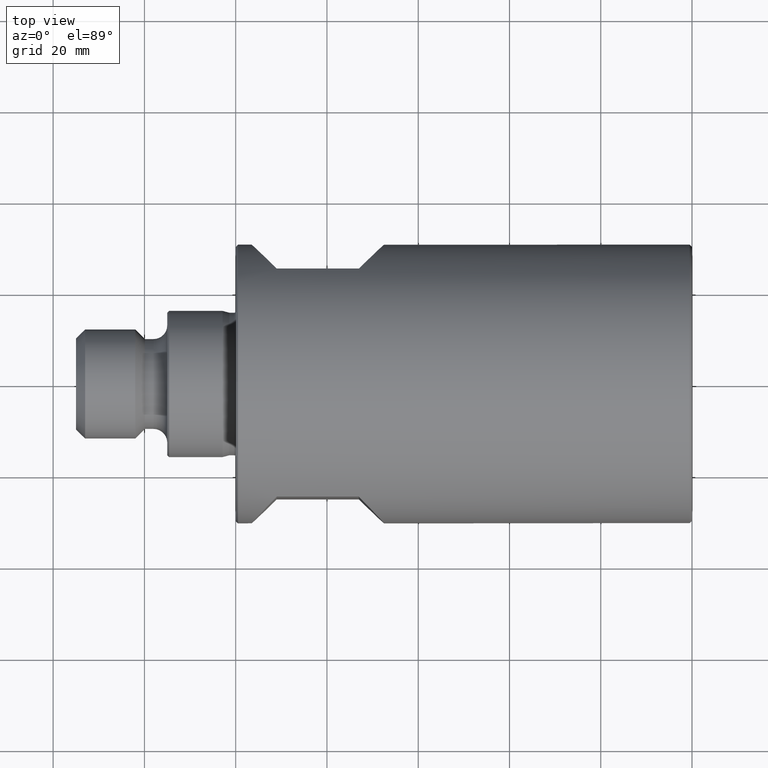
[diagram: clean part render]
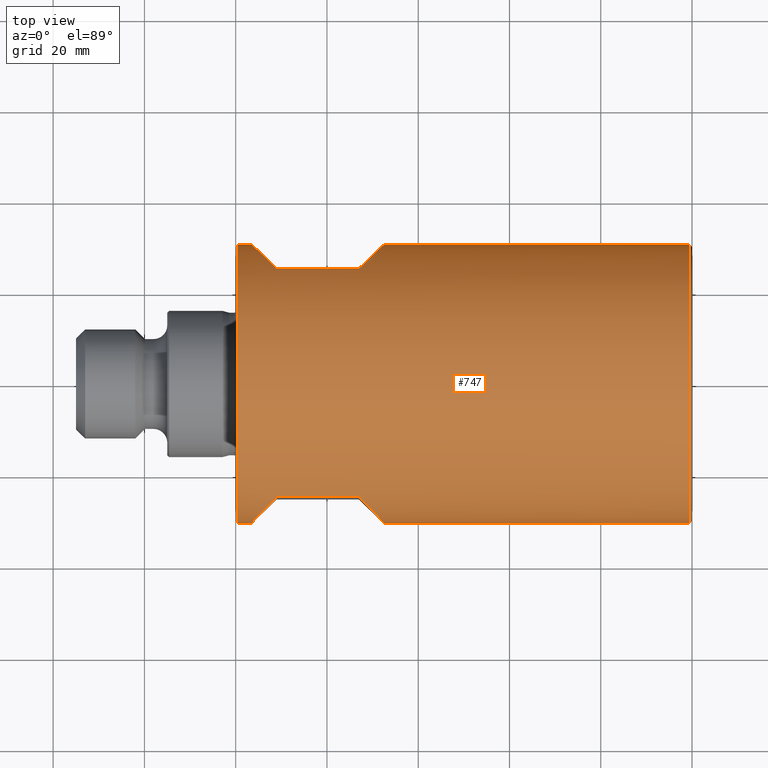
[diagram: same view with one face highlighted and labeled with its STEP entity id]
A machine part, top view. The second image highlights one B-rep face of the part: STEP entity #747.
In plain terms, the highlighted cylindrical surface (bore or boss wall) has radius 30.55 mm, axis along (1, -0, -0).
Its self-contained STEP definition (entity closure, byte-faithful):
#5 = CARTESIAN_POINT ( 'NONE',  ( -91.00000000000000000, -24.99999999999998600, 17.55854492832477800 ) ) ;
#15 = DIRECTION ( 'NONE',  ( -1.000000000000000000, 0.0000000000000000000, 0.0000000000000000000 ) ) ;
#25 = CARTESIAN_POINT ( 'NONE',  ( -73.00000000000001400, 24.99999999999998900, -17.55854492832478900 ) ) ;
#34 = DIRECTION ( 'NONE',  ( 1.000000000000000000, -0.0000000000000000000, -0.0000000000000000000 ) ) ;
#47 = VERTEX_POINT ( 'NONE', #257 ) ;
#62 = CARTESIAN_POINT ( 'NONE',  ( -91.00000000000000000, -24.99999999999998600, 17.55854492832477800 ) ) ;
#77 = VECTOR ( 'NONE', #875, 1000.000000000000000 ) ;
#80 = CARTESIAN_POINT ( 'NONE',  ( -65.34506517690874700, -32.65493482309124600, -6.659386065305054300 ) ) ;
#87 = CARTESIAN_POINT ( 'NONE',  ( -91.00000000000000000, 24.99999999999998600, 17.55854492832477800 ) ) ;
#125 =( BOUNDED_CURVE ( )  B_SPLINE_CURVE ( 3, ( #441, #373, #801, #5 ),
 .UNSPECIFIED., .F., .F. ) 
 B_SPLINE_CURVE_WITH_KNOTS ( ( 4, 4 ),
 ( 2.529296741777659300, 3.753888565401927400 ),
 .UNSPECIFIED. ) 
 CURVE ( )  GEOMETRIC_REPRESENTATION_ITEM ( )  RATIONAL_B_SPLINE_CURVE ( ( 1.000000000000000000, 0.8788870703764322100, 0.8788870703764322100, 1.000000000000000000 ) ) 
 REPRESENTATION_ITEM ( '' )  );
#151 = VERTEX_POINT ( 'NONE', #789 ) ;
#158 = EDGE_LOOP ( 'NONE', ( #812, #445, #400, #258 ) ) ;
#169 = AXIS2_PLACEMENT_3D ( 'NONE', #896, #15, #717 ) ;
#174 = CARTESIAN_POINT ( 'NONE',  ( -4.818676322157802300E-015, -25.00000000000000400, 17.55854492832476800 ) ) ;
#175 = EDGE_CURVE ( 'NONE', #380, #841, #125, .T. ) ;
#188 = LINE ( 'NONE', #174, #833 ) ;
#239 = CARTESIAN_POINT ( 'NONE',  ( -4.818676322157802300E-015, 25.00000000000000400, -17.55854492832476800 ) ) ;
#250 = EDGE_CURVE ( 'NONE', #540, #784, #434, .T. ) ;
#253 = CYLINDRICAL_SURFACE ( 'NONE', #477, 30.54999999999999400 ) ;
#257 = CARTESIAN_POINT ( 'NONE',  ( -73.00000000000001400, 24.99999999999998900, -17.55854492832478900 ) ) ;
#258 = ORIENTED_EDGE ( 'NONE', *, *, #473, .F. ) ;
#271 = ORIENTED_EDGE ( 'NONE', *, *, #516, .T. ) ;
#286 = FACE_OUTER_BOUND ( 'NONE', #295, .T. ) ;
#295 = EDGE_LOOP ( 'NONE', ( #271 ) ) ;
#305 =( BOUNDED_CURVE ( )  B_SPLINE_CURVE ( 3, ( #829, #325, #464, #25 ),
 .UNSPECIFIED., .F., .F. ) 
 B_SPLINE_CURVE_WITH_KNOTS ( ( 4, 4 ),
 ( 5.670889395367451500, 6.895481218991721000 ),
 .UNSPECIFIED. ) 
 CURVE ( )  GEOMETRIC_REPRESENTATION_ITEM ( )  RATIONAL_B_SPLINE_CURVE ( ( 1.000000000000000000, 0.8788870703764319900, 0.8788870703764319900, 1.000000000000000000 ) ) 
 REPRESENTATION_ITEM ( '' )  );
#312 = CARTESIAN_POINT ( 'NONE',  ( -98.65493482309126700, 32.65493482309123900, -6.659386065305042700 ) ) ;
#314 = EDGE_CURVE ( 'NONE', #841, #540, #188, .T. ) ;
#325 = CARTESIAN_POINT ( 'NONE',  ( -65.34506517690874700, 32.65493482309123900, 6.659386065305063200 ) ) ;
#329 = EDGE_CURVE ( 'NONE', #784, #380, #422, .T. ) ;
#330 = EDGE_LOOP ( 'NONE', ( #481, #487, #465, #457 ) ) ;
#331 = LINE ( 'NONE', #744, #727 ) ;
#338 = AXIS2_PLACEMENT_3D ( 'NONE', #795, #366, #876 ) ;
#342 = CARTESIAN_POINT ( 'NONE',  ( -91.00000000000000000, 24.99999999999998600, -17.55854492832478200 ) ) ;
#348 = DIRECTION ( 'NONE',  ( 1.000000000000000000, -0.0000000000000000000, -0.0000000000000000000 ) ) ;
#363 = EDGE_CURVE ( 'NONE', #468, #47, #305, .T. ) ;
#366 = DIRECTION ( 'NONE',  ( 1.000000000000000000, -0.0000000000000000000, -0.0000000000000000000 ) ) ;
#373 = CARTESIAN_POINT ( 'NONE',  ( -98.65493482309126700, -32.65493482309123900, -6.659386065305042700 ) ) ;
#380 = VERTEX_POINT ( 'NONE', #825 ) ;
#399 = FACE_BOUND ( 'NONE', #158, .T. ) ;
#400 = ORIENTED_EDGE ( 'NONE', *, *, #363, .F. ) ;
#403 =( BOUNDED_CURVE ( )  B_SPLINE_CURVE ( 3, ( #525, #312, #452, #87 ),
 .UNSPECIFIED., .F., .T. ) 
 B_SPLINE_CURVE_WITH_KNOTS ( ( 4, 4 ),
 ( 2.529296741777659300, 3.753888565401927400 ),
 .UNSPECIFIED. ) 
 CURVE ( )  GEOMETRIC_REPRESENTATION_ITEM ( )  RATIONAL_B_SPLINE_CURVE ( ( 1.000000000000000000, 0.8788870703764322100, 0.8788870703764322100, 1.000000000000000000 ) ) 
 REPRESENTATION_ITEM ( '' )  );
#406 = EDGE_CURVE ( 'NONE', #47, #657, #905, .T. ) ;
#420 = CARTESIAN_POINT ( 'NONE',  ( 0.0000000000000000000, 0.0000000000000000000, 0.0000000000000000000 ) ) ;
#422 = LINE ( 'NONE', #619, #738 ) ;
#434 =( BOUNDED_CURVE ( )  B_SPLINE_CURVE ( 3, ( #886, #808, #80, #595 ),
 .UNSPECIFIED., .F., .F. ) 
 B_SPLINE_CURVE_WITH_KNOTS ( ( 4, 4 ),
 ( 5.670889395367451500, 6.895481218991721000 ),
 .UNSPECIFIED. ) 
 CURVE ( )  GEOMETRIC_REPRESENTATION_ITEM ( )  RATIONAL_B_SPLINE_CURVE ( ( 1.000000000000000000, 0.8788870703764319900, 0.8788870703764319900, 1.000000000000000000 ) ) 
 REPRESENTATION_ITEM ( '' )  );
#441 = CARTESIAN_POINT ( 'NONE',  ( -91.00000000000000000, -24.99999999999998600, -17.55854492832478200 ) ) ;
#445 = ORIENTED_EDGE ( 'NONE', *, *, #406, .F. ) ;
#452 = CARTESIAN_POINT ( 'NONE',  ( -98.65493482309126700, 32.65493482309123900, 6.659386065305047200 ) ) ;
#457 = ORIENTED_EDGE ( 'NONE', *, *, #175, .T. ) ;
#464 = CARTESIAN_POINT ( 'NONE',  ( -65.34506517690874700, 32.65493482309124600, -6.659386065305054300 ) ) ;
#465 = ORIENTED_EDGE ( 'NONE', *, *, #329, .T. ) ;
#468 = VERTEX_POINT ( 'NONE', #816 ) ;
#473 = EDGE_CURVE ( 'NONE', #913, #468, #331, .T. ) ;
#477 = AXIS2_PLACEMENT_3D ( 'NONE', #420, #348, #858 ) ;
#481 = ORIENTED_EDGE ( 'NONE', *, *, #314, .T. ) ;
#487 = ORIENTED_EDGE ( 'NONE', *, *, #250, .T. ) ;
#503 = EDGE_CURVE ( 'NONE', #657, #913, #403, .T. ) ;
#516 = EDGE_CURVE ( 'NONE', #757, #757, #604, .T. ) ;
#525 = CARTESIAN_POINT ( 'NONE',  ( -91.00000000000000000, 24.99999999999998600, -17.55854492832478200 ) ) ;
#540 = VERTEX_POINT ( 'NONE', #721 ) ;
#541 = DIRECTION ( 'NONE',  ( -1.000000000000000000, 0.0000000000000000000, 0.0000000000000000000 ) ) ;
#573 = EDGE_CURVE ( 'NONE', #151, #151, #715, .T. ) ;
#595 = CARTESIAN_POINT ( 'NONE',  ( -73.00000000000001400, -24.99999999999998900, -17.55854492832478900 ) ) ;
#597 = DIRECTION ( 'NONE',  ( 1.000000000000000000, -0.0000000000000000000, -0.0000000000000000000 ) ) ;
#604 = CIRCLE ( 'NONE', #169, 30.54999999999999400 ) ;
#612 = EDGE_LOOP ( 'NONE', ( #681 ) ) ;
#619 = CARTESIAN_POINT ( 'NONE',  ( -4.818676322157802300E-015, -25.00000000000000400, -17.55854492832476800 ) ) ;
#639 = CARTESIAN_POINT ( 'NONE',  ( -73.00000000000001400, -24.99999999999998900, -17.55854492832478900 ) ) ;
#657 = VERTEX_POINT ( 'NONE', #342 ) ;
#681 = ORIENTED_EDGE ( 'NONE', *, *, #573, .T. ) ;
#690 = FACE_BOUND ( 'NONE', #330, .T. ) ;
#715 = CIRCLE ( 'NONE', #338, 30.54999999999999400 ) ;
#716 = CARTESIAN_POINT ( 'NONE',  ( -0.4999999999999935100, 0.0000000000000000000, -30.54999999999999400 ) ) ;
#717 = DIRECTION ( 'NONE',  ( 0.0000000000000000000, 0.0000000000000000000, -1.000000000000000000 ) ) ;
#721 = CARTESIAN_POINT ( 'NONE',  ( -73.00000000000001400, -24.99999999999998900, 17.55854492832479300 ) ) ;
#727 = VECTOR ( 'NONE', #597, 1000.000000000000000 ) ;
#738 = VECTOR ( 'NONE', #541, 1000.000000000000000 ) ;
#744 = CARTESIAN_POINT ( 'NONE',  ( -4.818676322157802300E-015, 25.00000000000000400, 17.55854492832476800 ) ) ;
#747 = ADVANCED_FACE ( 'NONE', ( #856, #286, #399, #690 ), #253, .T. ) ;
#757 = VERTEX_POINT ( 'NONE', #716 ) ;
#784 = VERTEX_POINT ( 'NONE', #639 ) ;
#789 = CARTESIAN_POINT ( 'NONE',  ( -99.50000000000000000, 0.0000000000000000000, 30.54999999999999400 ) ) ;
#795 = CARTESIAN_POINT ( 'NONE',  ( -99.50000000000000000, 0.0000000000000000000, 0.0000000000000000000 ) ) ;
#801 = CARTESIAN_POINT ( 'NONE',  ( -98.65493482309126700, -32.65493482309123900, 6.659386065305047200 ) ) ;
#808 = CARTESIAN_POINT ( 'NONE',  ( -65.34506517690874700, -32.65493482309123900, 6.659386065305063200 ) ) ;
#812 = ORIENTED_EDGE ( 'NONE', *, *, #503, .F. ) ;
#816 = CARTESIAN_POINT ( 'NONE',  ( -73.00000000000001400, 24.99999999999998900, 17.55854492832479300 ) ) ;
#825 = CARTESIAN_POINT ( 'NONE',  ( -91.00000000000000000, -24.99999999999998600, -17.55854492832478200 ) ) ;
#829 = CARTESIAN_POINT ( 'NONE',  ( -73.00000000000001400, 24.99999999999998900, 17.55854492832479300 ) ) ;
#833 = VECTOR ( 'NONE', #34, 1000.000000000000000 ) ;
#841 = VERTEX_POINT ( 'NONE', #62 ) ;
#856 = FACE_OUTER_BOUND ( 'NONE', #612, .T. ) ;
#858 = DIRECTION ( 'NONE',  ( 0.0000000000000000000, 0.0000000000000000000, -1.000000000000000000 ) ) ;
#875 = DIRECTION ( 'NONE',  ( -1.000000000000000000, 0.0000000000000000000, 0.0000000000000000000 ) ) ;
#876 = DIRECTION ( 'NONE',  ( 0.0000000000000000000, 0.0000000000000000000, 1.000000000000000000 ) ) ;
#886 = CARTESIAN_POINT ( 'NONE',  ( -73.00000000000001400, -24.99999999999998900, 17.55854492832479300 ) ) ;
#896 = CARTESIAN_POINT ( 'NONE',  ( -0.4999999999999935100, 0.0000000000000000000, 0.0000000000000000000 ) ) ;
#905 = LINE ( 'NONE', #239, #77 ) ;
#913 = VERTEX_POINT ( 'NONE', #924 ) ;
#924 = CARTESIAN_POINT ( 'NONE',  ( -91.00000000000000000, 24.99999999999998600, 17.55854492832477800 ) ) ;